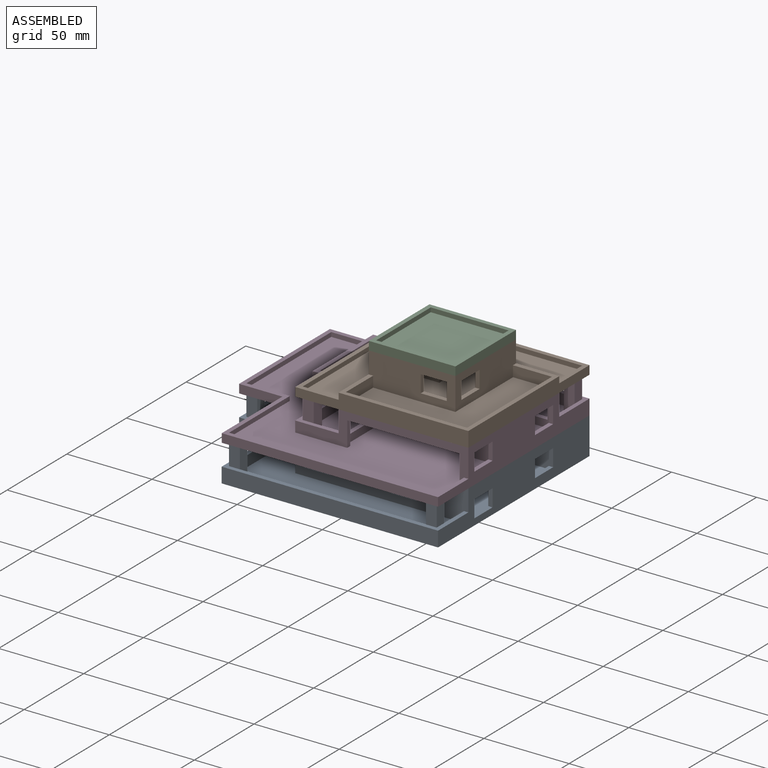
[diagram: assembled view]
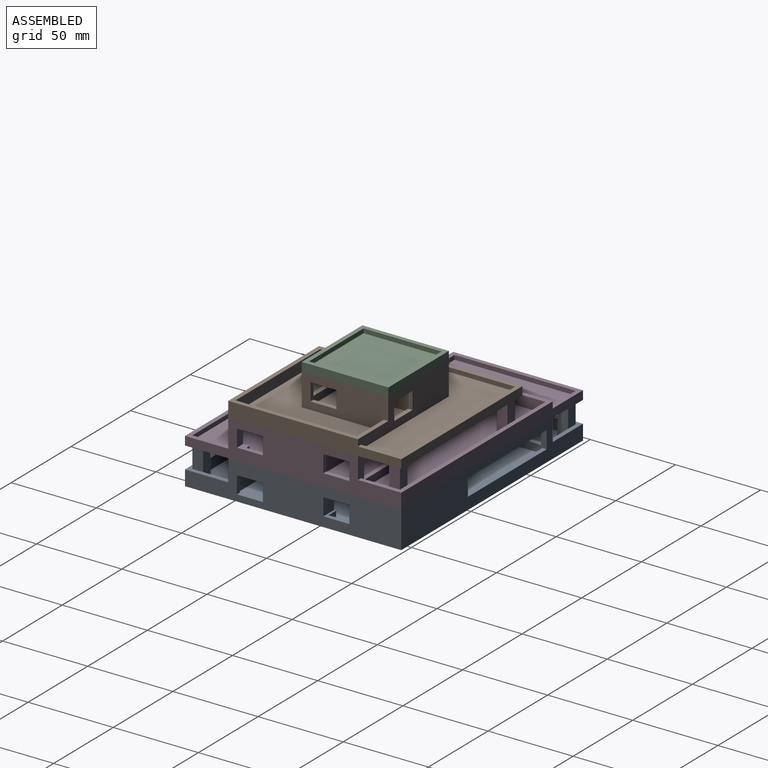
[diagram: assembled view, second angle]
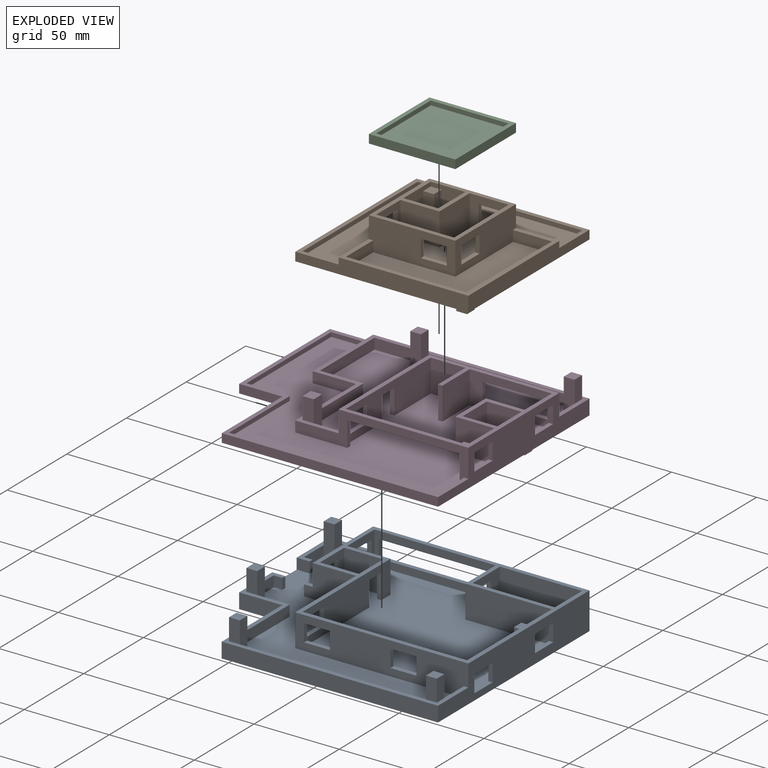
[diagram: exploded view]
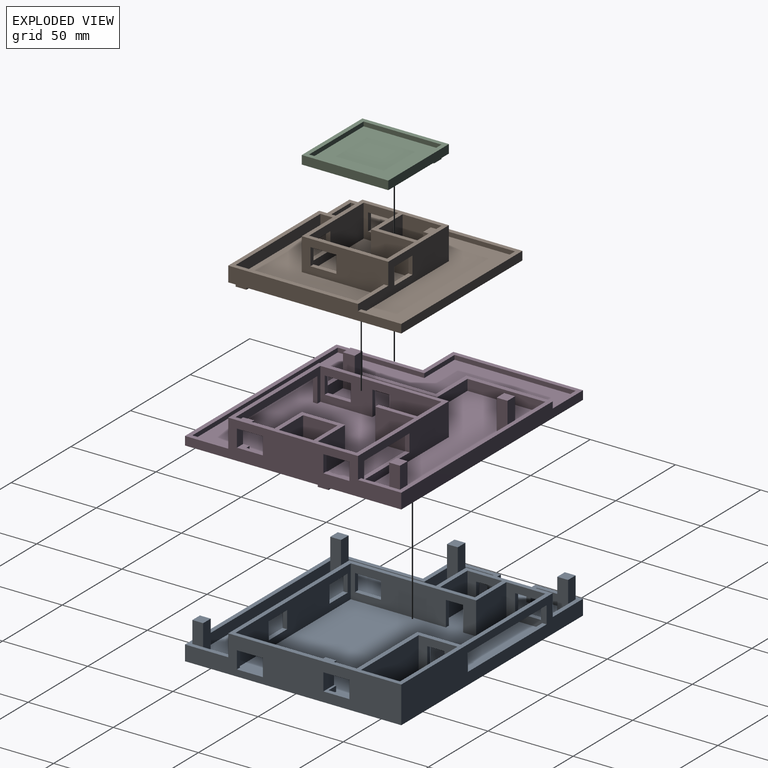
[diagram: exploded view, second angle]
ASSEMBLY  parts=4 mates=3
PART A: 118 faces, bbox 152.4x127x24.1 mm
  f0: plane 30.48x19.05mm, normal (0,-1,0), area 516.1mm2, adj f1,f6,f23,f40,f41,f116
  f1: plane 5.08x2.54mm, normal (0,0,1), area 12.9mm2, adj f0,f2,f6,f116
  f2: plane 6.35x5.08mm, normal (0,1,0), area 32.3mm2, adj f1,f6,f41,f116
  f3: plane 5.08x2.54mm, normal (0,0,1), area 12.9mm2, adj f4,f5,f6,f114
  f4: plane 6.35x5.08mm, normal (0,-1,0), area 32.3mm2, adj f3,f6,f41,f114
  f5: plane 6.35x5.08mm, normal (0,1,0), area 32.3mm2, adj f3,f6,f41,f114
  f6: plane 50.8x19.05mm, normal (-1,0,0), area 616.1mm2, adj f0,f1,f2,f3,f4,f5,f9,f16
  f7: plane 20.32x19.05mm, normal (1,0,0), area 238.7mm2, adj f33,f38,f40,f41,f111,f112,f113
  f8: plane 16.51x6.35mm, normal (1,0,0), area 104.8mm2, adj f37,f41,f45,f90
  f9: plane 27.94x25.4mm, normal (0,0,1), area 141.9mm2, adj f6,f15,f16,f17,f27,f82,f83,f108
  f10: plane 22.86x19.05mm, normal (1,0,0), area 287.1mm2, adj f31,f32,f40,f41,f105,f106,f107
  f11: plane 25.4x19.05mm, normal (-1,0,0), area 335.5mm2, adj f13,f36,f40,f41,f105,f106,f107
  f12: plane 73.66x19.05mm, normal (1,0,0), area 1100mm2, adj f24,f35,f40,f41,f62,f63,f64,f65
  f13: plane 71.12x19.05mm, normal (0,-1,0), area 683.9mm2, adj f11,f22,f40,f41,f78,f79,f80,f81
  f14: plane 109.28x6.35mm, normal (0,1,0), area 693.9mm2, adj f41,f45,f94,f99
  f15: plane 16.51x6.35mm, normal (1,0,0), area 104.8mm2, adj f9,f41,f85,f109
  f16: plane 16.51x6.35mm, normal (0,-1,0), area 104.8mm2, adj f6,f9,f41,f84
  f17: plane 152.4x21.59mm, normal (0,1,0), area 2296.8mm2, adj f6,f9,f19,f26,f27,f40,f78,f79
  f18: plane 71.12x19.05mm, normal (-1,0,0), area 953.2mm2, adj f20,f24,f36,f40,f41,f51,f52,f53
  f19: plane 127x21.59mm, normal (1,0,0), area 2109.7mm2, adj f17,f25,f26,f30,f40,f45,f70,f71
  f20: plane 6.35x3.18mm, normal (0,1,0), area 20.2mm2, adj f18,f21,f41,f71
  f21: plane 16.51x6.35mm, normal (-1,0,0), area 91.9mm2, adj f20,f41,f51,f52,f53,f71,f72,f73
  f22: plane 22.86x19.05mm, normal (1,0,0), area 280.6mm2, adj f13,f35,f40,f41,f66,f67,f68,f69
  f23: plane 50.8x19.05mm, normal (-1,0,0), area 812.9mm2, adj f0,f25,f40,f41,f62,f63,f64,f65
  f24: plane 96.52x19.05mm, normal (0,1,0), area 1529mm2, adj f12,f18,f40,f41,f54,f55,f56,f57
  f25: plane 101.6x19.05mm, normal (0,-1,0), area 1609.7mm2, adj f19,f23,f40,f41,f42,f45,f54,f55
  f26: plane 152.4x127mm, normal (0,0,-1), area 18027.2mm2, adj f17,f19,f27,f28,f29,f30,f46,f47
  f27: plane 76.2x8.89mm, normal (-1,0,0), area 548.4mm2, adj f9,f17,f26,f28,f41,f45,f108,f110
  f28: plane 25.34x8.89mm, normal (0,-1,0), area 225.3mm2, adj f26,f27,f29,f45
  f29: plane 50.8x8.89mm, normal (-1,0,0), area 451.6mm2, adj f26,f28,f30,f45
  f30: plane 127.06x8.89mm, normal (0,-1,0), area 1129.6mm2, adj f19,f26,f29,f45
  f31: plane 48.26x19.05mm, normal (0,1,0), area 919.4mm2, adj f10,f39,f40,f41
  f32: plane 48.26x19.05mm, normal (0,-1,0), area 919.4mm2, adj f10,f39,f40,f41
  f33: plane 22.86x19.05mm, normal (0,-1,0), area 435.5mm2, adj f7,f34,f40,f41
  f34: plane 20.32x19.05mm, normal (-1,0,0), area 238.7mm2, adj f33,f38,f40,f41,f102,f103,f104
  f35: plane 25.4x19.05mm, normal (0,1,0), area 483.9mm2, adj f12,f22,f40,f41
  f36: plane 50.8x19.05mm, normal (0,-1,0), area 967.7mm2, adj f11,f18,f40,f41
  f37: plane 6.35x5.08mm, normal (0,-1,0), area 32.3mm2, adj f8,f41,f45,f117
  f38: plane 22.86x19.05mm, normal (0,1,0), area 435.5mm2, adj f7,f34,f40,f41
  f39: plane 22.86x19.05mm, normal (-1,0,0), area 435.5mm2, adj f31,f32,f40,f41
  f40: plane 127x101.6mm, normal (0,0,1), area 1438.7mm2, adj f0,f6,f7,f10,f11,f12,f13,f17
  f41: plane 149.86x121.92mm, normal (0,0,1), area 15685.2mm2, adj f0,f2,f4,f5,f6,f7,f8,f10
  f42: plane 16.51x6.35mm, normal (-1,0,0), area 104.8mm2, adj f25,f41,f45,f100
  f43: plane 44.45x6.35mm, normal (1,0,0), area 282.3mm2, adj f41,f44,f45,f95
  f44: plane 18.99x6.35mm, normal (0,1,0), area 120.6mm2, adj f41,f43,f45,f89
  f45: plane 152.4x78.74mm, normal (0,0,1), area 651.6mm2, adj f8,f14,f19,f25,f27,f28,f29,f30
  f46: plane 6.35x2.54mm, normal (1,0,0), area 16.1mm2, adj f26,f47,f49,f50
  f47: plane 6.35x2.54mm, normal (0,-1,0), area 16.1mm2, adj f26,f46,f48,f50
  f48: plane 6.35x2.54mm, normal (-1,0,0), area 16.1mm2, adj f26,f47,f49,f50
  f49: plane 6.35x2.54mm, normal (0,1,0), area 16.1mm2, adj f26,f46,f48,f50
  f50: plane 6.35x6.35mm, normal (0,0,-1), area 40.3mm2, adj f46,f47,f48,f49
  f51: plane 6.35x3.18mm, normal (0,1,0), area 20.2mm2, adj f18,f21,f53,f72
  f52: plane 16.51x6.35mm, normal (0,-1,0), area 104.8mm2, adj f18,f21,f41,f53
  f53: plane 6.35x6.35mm, normal (0,0,1), area 40.3mm2, adj f18,f21,f51,f52
  f54: plane 15.24x2.54mm, normal (0,0,1), area 38.7mm2, adj f24,f25,f55,f57
  f55: plane 10.16x2.54mm, normal (-1,0,0), area 25.8mm2, adj f24,f25,f54,f56
  f56: plane 15.24x2.54mm, normal (0,0,-1), area 38.7mm2, adj f24,f25,f55,f57
  f57: plane 10.16x2.54mm, normal (1,0,0), area 25.8mm2, adj f24,f25,f54,f56
  f58: plane 10.16x2.54mm, normal (-1,0,0), area 25.8mm2, adj f24,f25,f59,f61
  f59: plane 15.24x2.54mm, normal (0,0,-1), area 38.7mm2, adj f24,f25,f58,f60
  f60: plane 10.16x2.54mm, normal (1,0,0), area 25.8mm2, adj f24,f25,f59,f61
  f61: plane 15.24x2.54mm, normal (0,0,1), area 38.7mm2, adj f24,f25,f58,f60
  f62: plane 15.24x2.54mm, normal (0,0,1), area 38.7mm2, adj f12,f23,f63,f65
  f63: plane 10.16x2.54mm, normal (0,1,0), area 25.8mm2, adj f12,f23,f62,f64
  f64: plane 15.24x2.54mm, normal (0,0,-1), area 38.7mm2, adj f12,f23,f63,f65
  f65: plane 10.16x2.54mm, normal (0,-1,0), area 25.8mm2, adj f12,f23,f62,f64
  f66: plane 15.24x2.54mm, normal (0,0,1), area 38.7mm2, adj f6,f22,f67,f69
  f67: plane 10.16x2.54mm, normal (0,1,0), area 25.8mm2, adj f6,f22,f66,f68
  f68: plane 15.24x2.54mm, normal (0,0,-1), area 38.7mm2, adj f6,f22,f67,f69
  f69: plane 10.16x2.54mm, normal (0,-1,0), area 25.8mm2, adj f6,f22,f66,f68
  f70: plane 10.16x2.54mm, normal (0,-1,0), area 25.8mm2, adj f18,f19,f71,f72
  f71: plane 15.24x8.89mm, normal (0,0,1), area 46.8mm2, adj f18,f19,f20,f21,f70,f73
  f72: plane 15.24x8.89mm, normal (0,0,-1), area 46.8mm2, adj f18,f19,f21,f51,f70,f73
  f73: plane 10.16x8.89mm, normal (0,1,0), area 90.3mm2, adj f19,f21,f71,f72
  f74: plane 15.24x2.54mm, normal (0,0,1), area 38.7mm2, adj f18,f19,f75,f77
  f75: plane 10.16x2.54mm, normal (0,-1,0), area 25.8mm2, adj f18,f19,f74,f76
  f76: plane 15.24x2.54mm, normal (0,0,-1), area 38.7mm2, adj f18,f19,f75,f77
  f77: plane 10.16x2.54mm, normal (0,1,0), area 25.8mm2, adj f18,f19,f74,f76
  f78: plane 10.16x2.54mm, normal (1,0,0), area 25.8mm2, adj f13,f17,f79,f80
  f79: plane 66.04x2.54mm, normal (0,0,1), area 167.7mm2, adj f13,f17,f78,f81
  f80: plane 66.04x2.54mm, normal (0,0,-1), area 167.7mm2, adj f13,f17,f78,f81
  f81: plane 10.16x2.54mm, normal (-1,0,0), area 25.8mm2, adj f13,f17,f79,f80
  f82: plane 12.7x6.35mm, normal (-1,0,0), area 80.6mm2, adj f9,f83,f85,f86
  f83: plane 12.7x6.35mm, normal (0,1,0), area 80.6mm2, adj f9,f82,f84,f86
  f84: plane 19.05x6.35mm, normal (1,0,0), area 121mm2, adj f16,f41,f83,f85,f86
  f85: plane 19.05x6.35mm, normal (0,-1,0), area 121mm2, adj f15,f41,f82,f84,f86
  f86: plane 6.35x6.35mm, normal (0,0,1), area 40.3mm2, adj f82,f83,f84,f85
  f87: plane 12.7x6.35mm, normal (0,-1,0), area 80.6mm2, adj f45,f88,f89,f91
  f88: plane 12.7x6.35mm, normal (-1,0,0), area 80.6mm2, adj f45,f87,f90,f91
  f89: plane 19.05x6.35mm, normal (1,0,0), area 121mm2, adj f41,f44,f87,f90,f91
  f90: plane 19.05x6.35mm, normal (0,1,0), area 121mm2, adj f8,f41,f88,f89,f91
  f91: plane 6.35x6.35mm, normal (0,0,1), area 40.3mm2, adj f87,f88,f89,f90
  f92: plane 12.7x6.35mm, normal (0,-1,0), area 80.6mm2, adj f45,f93,f94,f96
  f93: plane 12.7x6.35mm, normal (-1,0,0), area 80.6mm2, adj f45,f92,f95,f96
  f94: plane 19.05x6.35mm, normal (1,0,0), area 121mm2, adj f14,f41,f92,f95,f96
  f95: plane 19.05x6.35mm, normal (0,1,0), area 121mm2, adj f41,f43,f93,f94,f96
  f96: plane 6.35x6.35mm, normal (0,0,1), area 40.3mm2, adj f92,f93,f94,f95
  f97: plane 12.7x6.35mm, normal (1,0,0), area 80.6mm2, adj f45,f98,f100,f101
  f98: plane 12.7x6.35mm, normal (0,-1,0), area 80.6mm2, adj f45,f97,f99,f101
  f99: plane 19.05x6.35mm, normal (-1,0,0), area 121mm2, adj f14,f41,f98,f100,f101
  f100: plane 19.05x6.35mm, normal (0,1,0), area 121mm2, adj f41,f42,f97,f99,f101
  f101: plane 6.35x6.35mm, normal (0,0,1), area 40.3mm2, adj f97,f98,f99,f100
  f102: plane 14.61x2.54mm, normal (0,-1,0), area 37.1mm2, adj f12,f34,f41,f103
  f103: plane 10.16x2.54mm, normal (0,0,-1), area 25.8mm2, adj f12,f34,f102,f104
  f104: plane 14.61x2.54mm, normal (0,1,0), area 37.1mm2, adj f12,f34,f41,f103
  f105: plane 10.16x2.54mm, normal (0,0,-1), area 25.8mm2, adj f10,f11,f106,f107
  f106: plane 14.61x2.54mm, normal (0,-1,0), area 37.1mm2, adj f10,f11,f41,f105
  f107: plane 14.61x2.54mm, normal (0,1,0), area 37.1mm2, adj f10,f11,f41,f105
  f108: plane 7.62x6.35mm, normal (0,-1,0), area 48.4mm2, adj f9,f27,f41,f115
  f109: plane 6.35x5.08mm, normal (0,1,0), area 32.3mm2, adj f9,f15,f41,f115
  f110: plane 7.62x6.35mm, normal (0,1,0), area 48.4mm2, adj f27,f41,f45,f117
  f111: plane 14.61x2.54mm, normal (0,-1,0), area 37.1mm2, adj f6,f7,f41,f113
  f112: plane 14.61x2.54mm, normal (0,1,0), area 37.1mm2, adj f6,f7,f41,f113
  f113: plane 10.16x2.54mm, normal (0,0,-1), area 25.8mm2, adj f6,f7,f111,f112
  f114: plane 6.35x2.54mm, normal (-1,0,0), area 16.1mm2, adj f3,f4,f5,f41
  f115: plane 6.35x2.54mm, normal (1,0,0), area 16.1mm2, adj f9,f41,f108,f109
  f116: plane 6.35x2.54mm, normal (-1,0,0), area 16.1mm2, adj f0,f1,f2,f41
  f117: plane 6.35x2.54mm, normal (1,0,0), area 16.1mm2, adj f37,f41,f45,f110
PART B: 58 faces, bbox 101.6x101.6x24.1 mm
  f0: plane 22.86x19.05mm, normal (1,0,0), area 330.6mm2, adj f1,f14,f15,f19,f56,f57
  f1: plane 22.86x20.32mm, normal (0,0,1), area 424.2mm2, adj f0,f14,f15,f18,f55,f56
  f2: plane 76.2x19.05mm, normal (0,1,0), area 967.7mm2, adj f3,f7,f12,f19,f25,f34,f35,f36
  f3: plane 76.2x19.05mm, normal (-1,0,0), area 967.7mm2, adj f2,f8,f11,f19,f25,f38,f39,f40
  f4: plane 20.32x19.05mm, normal (1,0,0), area 232.3mm2, adj f9,f17,f19,f20,f38,f39,f40,f41
  f5: plane 22.86x19.05mm, normal (0,-1,0), area 280.6mm2, adj f6,f16,f19,f20,f34,f35,f36,f37
  f6: plane 45.72x19.05mm, normal (-1,0,0), area 716.1mm2, adj f5,f9,f19,f20,f30,f31,f32,f33
  f7: plane 50.8x19.05mm, normal (1,0,0), area 796.8mm2, adj f2,f8,f10,f19,f21,f25,f30,f31
  f8: plane 50.8x19.05mm, normal (0,-1,0), area 796.8mm2, adj f3,f7,f10,f19,f24,f25,f26,f27
  f9: plane 45.72x19.05mm, normal (0,1,0), area 716.1mm2, adj f4,f6,f19,f20,f26,f27,f28,f29
  f10: plane 71.12x71.12mm, normal (0,0,1), area 2729mm2, adj f7,f8,f21,f22,f23,f24
  f11: plane 101.6x8.89mm, normal (0,-1,0), area 806.4mm2, adj f3,f12,f13,f25,f49,f54
  f12: plane 101.6x8.89mm, normal (1,0,0), area 806.5mm2, adj f2,f11,f13,f25,f48,f54
  f13: plane 101.6x101.6mm, normal (0,0,-1), area 10282.2mm2, adj f11,f12,f42,f43,f44,f45,f48,f49
  f14: plane 20.32x19.05mm, normal (0,1,0), area 387.1mm2, adj f0,f1,f18,f19
  f15: plane 20.32x19.05mm, normal (0,-1,0), area 282.3mm2, adj f0,f1,f18,f19,f55,f57
  f16: plane 25.4x19.05mm, normal (1,0,0), area 483.9mm2, adj f5,f17,f19,f20
  f17: plane 22.86x19.05mm, normal (0,-1,0), area 435.5mm2, adj f4,f16,f19,f20
  f18: plane 22.86x19.05mm, normal (-1,0,0), area 435.5mm2, adj f1,f14,f15,f19
  f19: plane 50.8x50.8mm, normal (0,0,1), area 606.5mm2, adj f0,f2,f3,f4,f5,f6,f7,f8
  f20: plane 45.72x45.72mm, normal (0,0,1), area 1509.7mm2, adj f4,f5,f6,f9,f16,f17
  f21: plane 22.86x6.35mm, normal (0,-1,0), area 145.2mm2, adj f7,f10,f22,f25
  f22: plane 71.12x6.35mm, normal (-1,0,0), area 451.6mm2, adj f10,f21,f23,f25
  f23: plane 71.12x6.35mm, normal (0,1,0), area 451.6mm2, adj f10,f22,f24,f25
  f24: plane 22.86x6.35mm, normal (1,0,0), area 145.2mm2, adj f8,f10,f23,f25
  f25: plane 76.2x76.2mm, normal (0,0,1), area 496.8mm2, adj f2,f3,f7,f8,f11,f12,f21,f22
  f26: plane 15.24x2.54mm, normal (0,0,1), area 38.7mm2, adj f8,f9,f27,f29
  f27: plane 10.16x2.54mm, normal (-1,0,0), area 25.8mm2, adj f8,f9,f26,f28
  f28: plane 15.24x2.54mm, normal (0,0,-1), area 38.7mm2, adj f8,f9,f27,f29
  f29: plane 10.16x2.54mm, normal (1,0,0), area 25.8mm2, adj f8,f9,f26,f28
  f30: plane 15.24x2.54mm, normal (0,0,1), area 38.7mm2, adj f6,f7,f31,f33
  f31: plane 10.16x2.54mm, normal (0,-1,0), area 25.8mm2, adj f6,f7,f30,f32
  f32: plane 15.24x2.54mm, normal (0,0,-1), area 38.7mm2, adj f6,f7,f31,f33
  f33: plane 10.16x2.54mm, normal (0,1,0), area 25.8mm2, adj f6,f7,f30,f32
  f34: plane 15.24x2.54mm, normal (0,0,1), area 38.7mm2, adj f2,f5,f35,f37
  f35: plane 10.16x2.54mm, normal (1,0,0), area 25.8mm2, adj f2,f5,f34,f36
  f36: plane 15.24x2.54mm, normal (0,0,-1), area 38.7mm2, adj f2,f5,f35,f37
  f37: plane 10.16x2.54mm, normal (-1,0,0), area 25.8mm2, adj f2,f5,f34,f36
  f38: plane 15.24x2.54mm, normal (0,0,1), area 38.7mm2, adj f3,f4,f39,f41
  f39: plane 10.16x2.54mm, normal (0,1,0), area 25.8mm2, adj f3,f4,f38,f40
  f40: plane 15.24x2.54mm, normal (0,0,-1), area 38.7mm2, adj f3,f4,f39,f41
  f41: plane 10.16x2.54mm, normal (0,-1,0), area 25.8mm2, adj f3,f4,f38,f40
  f42: plane 6.35x2.54mm, normal (0,1,0), area 16.1mm2, adj f13,f43,f45,f46
  f43: plane 6.35x2.54mm, normal (1,0,0), area 16.1mm2, adj f13,f42,f44,f46
  f44: plane 6.35x2.54mm, normal (0,-1,0), area 16.1mm2, adj f13,f43,f45,f46
  f45: plane 6.35x2.54mm, normal (-1,0,0), area 16.1mm2, adj f13,f42,f44,f46
  f46: plane 6.35x6.35mm, normal (0,0,-1), area 40.3mm2, adj f42,f43,f44,f45
  f47: plane 96.52x96.52mm, normal (0,0,1), area 3890.3mm2, adj f2,f3,f50,f51,f52,f53
  f48: plane 101.6x5.08mm, normal (0,1,0), area 516.1mm2, adj f12,f13,f49,f54
  f49: plane 101.6x5.08mm, normal (-1,0,0), area 516.1mm2, adj f11,f13,f48,f54
  f50: plane 22.86x2.54mm, normal (0,1,0), area 58.1mm2, adj f3,f47,f51,f54
  f51: plane 96.52x2.54mm, normal (1,0,0), area 245.2mm2, adj f47,f50,f52,f54
  f52: plane 96.52x2.54mm, normal (0,-1,0), area 245.2mm2, adj f47,f51,f53,f54
  f53: plane 22.86x2.54mm, normal (-1,0,0), area 58.1mm2, adj f2,f47,f52,f54
  f54: plane 101.6x101.6mm, normal (0,0,1), area 625.8mm2, adj f2,f3,f11,f12,f48,f49,f50,f51
  f55: plane 16.51x6.35mm, normal (1,0,0), area 104.8mm2, adj f1,f15,f56,f57
  f56: plane 16.51x6.35mm, normal (0,-1,0), area 104.8mm2, adj f0,f1,f55,f57
  f57: plane 6.35x6.35mm, normal (0,0,1), area 40.3mm2, adj f0,f15,f55,f56
PART C: 16 faces, bbox 50.8x50.8x7.6 mm
  f0: plane 50.8x5.08mm, normal (0,-1,0), area 258.1mm2, adj f1,f3,f4,f9
  f1: plane 50.8x5.08mm, normal (1,0,0), area 258.1mm2, adj f0,f2,f4,f9
  f2: plane 50.8x5.08mm, normal (0,1,0), area 258.1mm2, adj f1,f3,f4,f9
  f3: plane 50.8x5.08mm, normal (-1,0,0), area 258.1mm2, adj f0,f2,f4,f9
  f4: plane 50.8x50.8mm, normal (0,0,-1), area 2540.3mm2, adj f0,f1,f2,f3,f11,f12,f13,f14
  f5: plane 45.72x2.54mm, normal (0,1,0), area 116.1mm2, adj f6,f8,f9,f10
  f6: plane 45.72x2.54mm, normal (1,0,0), area 116.1mm2, adj f5,f7,f9,f10
  f7: plane 45.72x2.54mm, normal (0,-1,0), area 116.1mm2, adj f6,f8,f9,f10
  f8: plane 45.72x2.54mm, normal (-1,0,0), area 116.1mm2, adj f5,f7,f9,f10
  f9: plane 50.8x50.8mm, normal (0,0,1), area 490.3mm2, adj f0,f1,f2,f3,f5,f6,f7,f8
  f10: plane 45.72x45.72mm, normal (0,0,1), area 2090.3mm2, adj f5,f6,f7,f8
  f11: plane 6.35x2.54mm, normal (0,1,0), area 16.1mm2, adj f4,f12,f14,f15
  f12: plane 6.35x2.54mm, normal (1,0,0), area 16.1mm2, adj f4,f11,f13,f15
  f13: plane 6.35x2.54mm, normal (0,-1,0), area 16.1mm2, adj f4,f12,f14,f15
  f14: plane 6.35x2.54mm, normal (-1,0,0), area 16.1mm2, adj f4,f11,f13,f15
  f15: plane 6.35x6.35mm, normal (0,0,-1), area 40.3mm2, adj f11,f12,f13,f14
PART D: 96 faces, bbox 152.4x127x24.1 mm
  f0: plane 76.2x19.05mm, normal (-1,0,0), area 1132.3mm2, adj f4,f19,f24,f35,f36,f40,f54,f55
  f1: plane 83.82x6.35mm, normal (0,-1,0), area 532.3mm2, adj f4,f40,f84,f90
  f2: plane 25.4x6.35mm, normal (0,-1,0), area 161.3mm2, adj f4,f38,f40,f85
  f3: plane 43.9x6.35mm, normal (1,0,0), area 278.8mm2, adj f4,f37,f40,f81
  f4: plane 147.32x121.92mm, normal (0,0,1), area 15155.1mm2, adj f0,f1,f2,f3,f5,f6,f7,f9
  f5: plane 50.8x6.35mm, normal (-1,0,0), area 316.1mm2, adj f4,f14,f20,f40,f76,f77
  f6: plane 4.45x2.54mm, normal (0,1,0), area 11.3mm2, adj f4,f7,f10,f65
  f7: plane 22.86x19.05mm, normal (-1,0,0), area 214.5mm2, adj f4,f6,f12,f25,f33,f35,f61,f63
  f8: plane 127x21.59mm, normal (1,0,0), area 1690.3mm2, adj f18,f19,f20,f24,f35,f40,f58,f63
  f9: plane 22.86x19.05mm, normal (-1,0,0), area 280.6mm2, adj f4,f30,f31,f35,f67,f68,f69,f70
  f10: plane 14.61x8.89mm, normal (-1,0,0), area 91.1mm2, adj f4,f6,f19,f63,f65,f66
  f11: plane 6.35x1.91mm, normal (-1,0,0), area 12.1mm2, adj f12,f25,f61,f63
  f12: plane 6.35x1.91mm, normal (0,1,0), area 12.1mm2, adj f7,f11,f61,f63
  f13: plane 50.8x5.08mm, normal (-1,0,0), area 258.1mm2, adj f18,f58,f59,f77
  f14: plane 25.4x6.35mm, normal (0,-1,0), area 161.3mm2, adj f4,f5,f15,f40
  f15: plane 50.8x6.35mm, normal (-1,0,0), area 322.6mm2, adj f4,f14,f19,f40
  f16: plane 71.12x19.05mm, normal (1,0,0), area 1051.6mm2, adj f4,f25,f26,f35,f54,f55,f56,f57
  f17: plane 20.32x20.32mm, normal (0,0,1), area 258.1mm2, adj f21,f22,f23,f34,f41,f42,f43,f44
  f18: plane 152.4x127mm, normal (0,0,-1), area 17869.3mm2, adj f8,f13,f20,f41,f42,f43,f44,f45
  f19: plane 101.6x19.05mm, normal (0,-1,0), area 641.9mm2, adj f0,f4,f8,f10,f15,f35,f40,f62
  f20: plane 152.4x8.89mm, normal (0,1,0), area 1258.1mm2, adj f5,f8,f18,f40,f60,f77
  f21: plane 20.32x19.05mm, normal (-1,0,0), area 387.1mm2, adj f17,f22,f34,f35
  f22: plane 20.32x19.05mm, normal (0,1,0), area 387.1mm2, adj f17,f21,f23,f35
  f23: plane 20.32x19.05mm, normal (1,0,0), area 387.1mm2, adj f17,f22,f34,f35
  f24: plane 76.2x19.05mm, normal (0,1,0), area 1048.4mm2, adj f0,f4,f8,f35,f39,f40,f50,f51
  f25: plane 71.12x19.05mm, normal (0,1,0), area 341.1mm2, adj f4,f7,f11,f16,f35,f61,f62,f63
  f26: plane 20.32x19.05mm, normal (0,-1,0), area 387.1mm2, adj f4,f16,f27,f35
  f27: plane 22.86x19.05mm, normal (-1,0,0), area 435.5mm2, adj f4,f26,f28,f35
  f28: plane 19.05x2.54mm, normal (0,-1,0), area 48.4mm2, adj f4,f27,f29,f35
  f29: plane 22.86x19.05mm, normal (1,0,0), area 435.5mm2, adj f4,f28,f30,f35
  f30: plane 48.26x19.05mm, normal (0,-1,0), area 532.3mm2, adj f4,f9,f29,f35,f50,f51,f52,f53
  f31: plane 22.86x19.05mm, normal (0,1,0), area 435.5mm2, adj f4,f9,f32,f35
  f32: plane 25.4x19.05mm, normal (-1,0,0), area 483.9mm2, adj f4,f31,f33,f35
  f33: plane 22.86x19.05mm, normal (0,-1,0), area 435.5mm2, adj f4,f7,f32,f35
  f34: plane 20.32x19.05mm, normal (0,-1,0), area 387.1mm2, adj f17,f21,f23,f35
  f35: plane 76.2x76.2mm, normal (0,0,1), area 974.2mm2, adj f0,f7,f8,f9,f16,f19,f21,f22
  f36: plane 16.36x6.35mm, normal (0,1,0), area 103.9mm2, adj f0,f4,f40,f80
  f37: plane 25.4x6.35mm, normal (0,1,0), area 161.3mm2, adj f3,f4,f38,f40
  f38: plane 45.72x6.35mm, normal (1,0,0), area 290.3mm2, adj f2,f4,f37,f40
  f39: plane 16.51x6.35mm, normal (-1,0,0), area 104.8mm2, adj f4,f24,f40,f91
  f40: plane 127x101.6mm, normal (0,0,1), area 754.8mm2, adj f0,f1,f2,f3,f5,f8,f14,f15
  f41: plane 10.16x2.54mm, normal (0,-1,0), area 25.8mm2, adj f17,f18,f42,f44
  f42: plane 15.24x2.54mm, normal (1,0,0), area 38.7mm2, adj f17,f18,f41,f43
  f43: plane 10.16x2.54mm, normal (0,1,0), area 25.8mm2, adj f17,f18,f42,f44
  f44: plane 15.24x2.54mm, normal (-1,0,0), area 38.7mm2, adj f17,f18,f41,f43
  f45: plane 6.35x2.54mm, normal (1,0,0), area 16.1mm2, adj f18,f46,f48,f49
  f46: plane 6.35x2.54mm, normal (0,-1,0), area 16.1mm2, adj f18,f45,f47,f49
  f47: plane 6.35x2.54mm, normal (-1,0,0), area 16.1mm2, adj f18,f46,f48,f49
  f48: plane 6.35x2.54mm, normal (0,1,0), area 16.1mm2, adj f18,f45,f47,f49
  f49: plane 6.35x6.35mm, normal (0,0,-1), area 40.3mm2, adj f45,f46,f47,f48
  f50: plane 38.1x2.54mm, normal (0,0,1), area 96.8mm2, adj f24,f30,f51,f53
  f51: plane 10.16x2.54mm, normal (1,0,0), area 25.8mm2, adj f24,f30,f50,f52
  f52: plane 38.1x2.54mm, normal (0,0,-1), area 96.8mm2, adj f24,f30,f51,f53
  f53: plane 10.16x2.54mm, normal (-1,0,0), area 25.8mm2, adj f24,f30,f50,f52
  f54: plane 15.24x2.54mm, normal (0,0,1), area 38.7mm2, adj f0,f16,f55,f57
  f55: plane 10.16x2.54mm, normal (0,1,0), area 25.8mm2, adj f0,f16,f54,f56
  f56: plane 15.24x2.54mm, normal (0,0,-1), area 38.7mm2, adj f0,f16,f55,f57
  f57: plane 10.16x2.54mm, normal (0,-1,0), area 25.8mm2, adj f0,f16,f54,f56
  f58: plane 127x5.08mm, normal (0,-1,0), area 645.2mm2, adj f8,f13,f18,f77
  f59: plane 25.4x5.08mm, normal (0,-1,0), area 129mm2, adj f13,f18,f60,f77
  f60: plane 76.2x5.08mm, normal (-1,0,0), area 387.1mm2, adj f18,f20,f59,f77
  f61: plane 6.35x6.35mm, normal (0,0,1), area 40.3mm2, adj f7,f11,f12,f25
  f62: plane 14.61x2.54mm, normal (1,0,0), area 37.1mm2, adj f4,f19,f25,f63
  f63: plane 71.12x20.32mm, normal (0,0,-1), area 240.3mm2, adj f7,f8,f10,f11,f12,f19,f25,f62
  f64: plane 10.16x2.54mm, normal (0,-1,0), area 25.8mm2, adj f7,f8,f63,f65
  f65: plane 15.24x5.08mm, normal (0,0,1), area 48.4mm2, adj f6,f7,f8,f10,f64,f66
  f66: plane 10.16x5.08mm, normal (0,1,0), area 51.6mm2, adj f8,f10,f63,f65
  f67: plane 15.24x2.54mm, normal (0,0,1), area 38.7mm2, adj f8,f9,f68,f70
  f68: plane 10.16x2.54mm, normal (0,-1,0), area 25.8mm2, adj f8,f9,f67,f69
  f69: plane 15.24x2.54mm, normal (0,0,-1), area 38.7mm2, adj f8,f9,f68,f70
  f70: plane 10.16x2.54mm, normal (0,1,0), area 25.8mm2, adj f8,f9,f67,f69
  f71: plane 22.86x2.54mm, normal (-1,0,0), area 58.1mm2, adj f4,f19,f72,f77
  f72: plane 121.92x2.54mm, normal (0,1,0), area 309.7mm2, adj f4,f71,f73,f77
  f73: plane 50.8x2.54mm, normal (1,0,0), area 129mm2, adj f4,f72,f74,f77
  f74: plane 25.4x2.54mm, normal (0,1,0), area 64.5mm2, adj f4,f73,f75,f77
  f75: plane 71.12x2.54mm, normal (1,0,0), area 180.6mm2, adj f4,f74,f76,f77
  f76: plane 22.86x2.54mm, normal (0,-1,0), area 58.1mm2, adj f4,f5,f75,f77
  f77: plane 152.4x127mm, normal (0,0,1), area 819.4mm2, adj f5,f8,f13,f19,f20,f58,f59,f60
  f78: plane 12.7x6.5mm, normal (0,-1,0), area 82.6mm2, adj f40,f79,f80,f82
  f79: plane 12.7x6.9mm, normal (-1,0,0), area 87.6mm2, adj f40,f78,f81,f82
  f80: plane 19.05x6.9mm, normal (1,0,0), area 131.4mm2, adj f4,f36,f78,f81,f82
  f81: plane 19.05x6.5mm, normal (0,1,0), area 123.9mm2, adj f3,f4,f79,f80,f82
  f82: plane 6.9x6.5mm, normal (0,0,1), area 44.8mm2, adj f78,f79,f80,f81
  f83: plane 12.7x6.35mm, normal (0,1,0), area 80.6mm2, adj f40,f84,f85,f87
  f84: plane 19.05x6.35mm, normal (1,0,0), area 121mm2, adj f1,f4,f83,f86,f87
  f85: plane 19.05x6.35mm, normal (-1,0,0), area 121mm2, adj f2,f4,f83,f86,f87
  f86: plane 19.05x6.35mm, normal (0,-1,0), area 121mm2, adj f4,f84,f85,f87
  f87: plane 6.35x6.35mm, normal (0,0,1), area 40.3mm2, adj f83,f84,f85,f86
  f88: plane 12.7x6.35mm, normal (0,1,0), area 80.6mm2, adj f40,f89,f90,f92
  f89: plane 12.7x6.35mm, normal (1,0,0), area 80.6mm2, adj f40,f88,f91,f92
  f90: plane 19.05x6.35mm, normal (-1,0,0), area 121mm2, adj f1,f4,f88,f91,f92
  f91: plane 19.05x6.35mm, normal (0,-1,0), area 121mm2, adj f4,f39,f89,f90,f92
  f92: plane 6.35x6.35mm, normal (0,0,1), area 40.3mm2, adj f88,f89,f90,f91
  f93: plane 10.16x2.54mm, normal (0,0,-1), area 25.8mm2, adj f0,f16,f94,f95
  f94: plane 14.61x2.54mm, normal (0,-1,0), area 37.1mm2, adj f0,f4,f16,f93
  f95: plane 14.61x2.54mm, normal (0,1,0), area 37.1mm2, adj f0,f4,f16,f93
PLACE A t=(-34.94,43.71,-5.11)mm
PLACE B t=(-9.54,5.61,38.07)mm
PLACE C rot(axis=(0,0,1),180deg) t=(-22.24,18.31,59.66)mm
PLACE D t=(-34.94,43.71,16.48)mm
MATE fastened D.f49 <-> A.f53  axis (0,0,-1) through (22.85,21.48,13.94)mm
MATE fastened B.f46 <-> D.f61  axis (0,0,-1) through (22.85,-26.78,35.53)mm
MATE fastened C.f15 <-> B.f57  axis (0,0,-1) through (-41.92,37.99,57.12)mm
